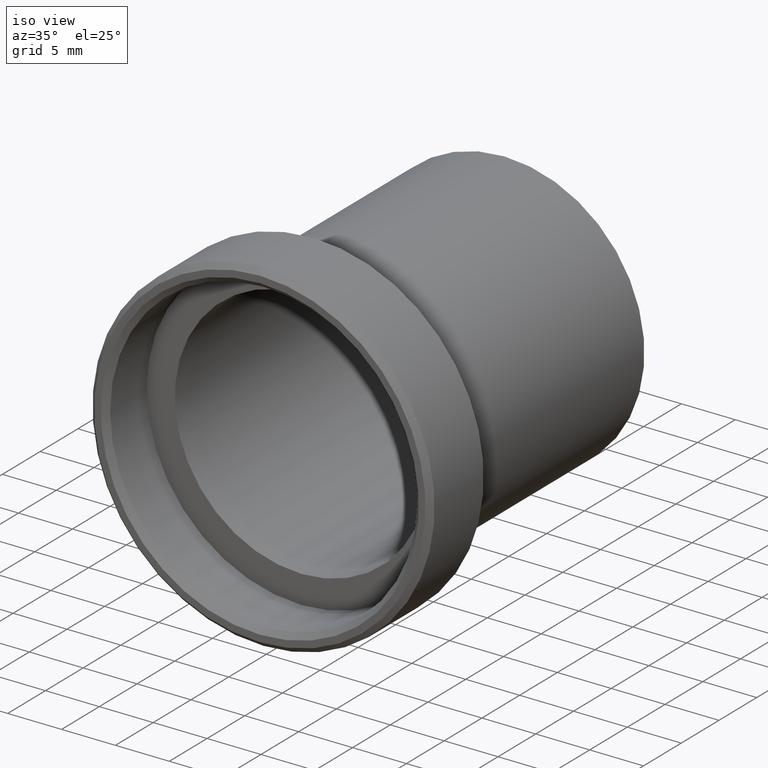
[diagram: clean part render]
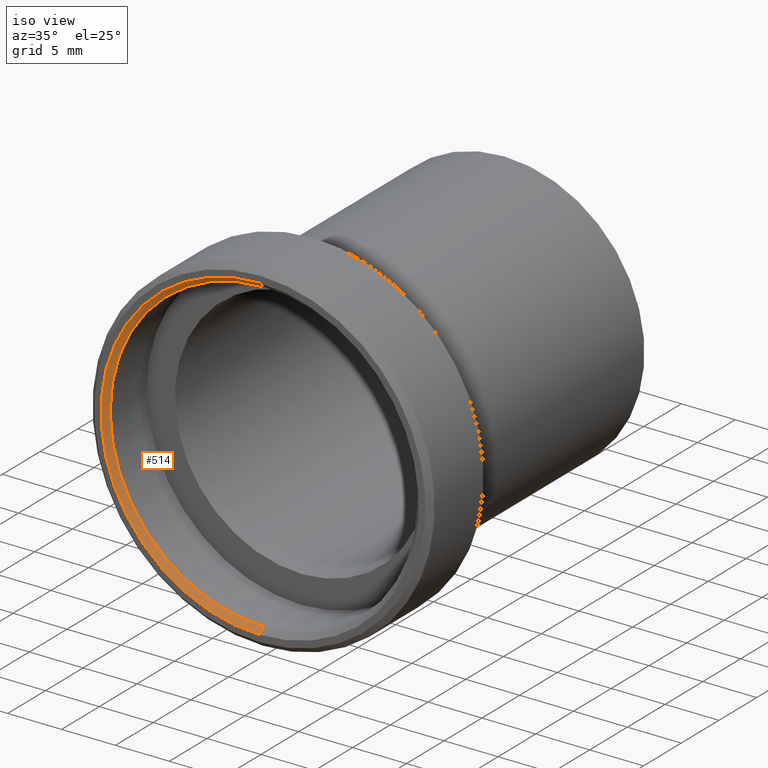
[diagram: same view with one face highlighted and labeled with its STEP entity id]
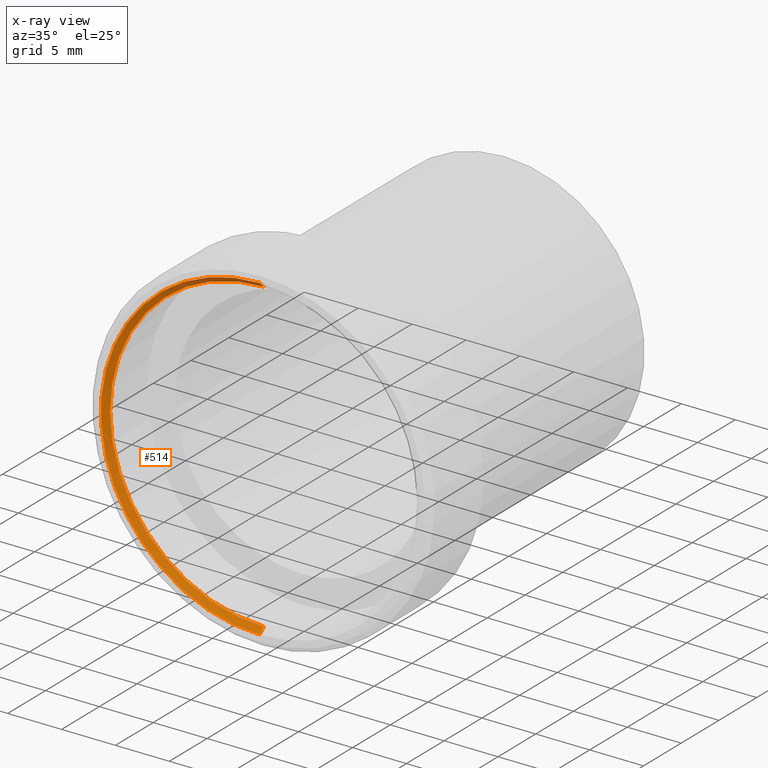
[diagram: x-ray of the same camera — body ghosted, the highlighted face saturated]
A machine part, iso view. The second image highlights one B-rep face of the part: STEP entity #514.
The next image is the same camera in x-ray: the body ghosted, the highlighted face saturated — about 0% of this face is hidden behind the body in this view.
In plain terms, the highlighted conical surface has half-angle 45 deg.
Its self-contained STEP definition (entity closure, byte-faithful):
#7 = CARTESIAN_POINT ( 'NONE',  ( 0.0000000000000000000, -5.857145825433105000, -14.75000000000000900 ) ) ;
#29 = CIRCLE ( 'NONE', #35, 14.75000000000000900 ) ;
#35 = AXIS2_PLACEMENT_3D ( 'NONE', #259, #819, #612 ) ;
#47 = DIRECTION ( 'NONE',  ( -0.0000000000000000000, 1.000000000000000000, -0.0000000000000000000 ) ) ;
#60 = CARTESIAN_POINT ( 'NONE',  ( 0.0000000000000000000, -5.357145825433104100, 0.0000000000000000000 ) ) ;
#108 = CARTESIAN_POINT ( 'NONE',  ( 1.745121688784979000E-015, -5.357145825433104100, 14.25000000000000500 ) ) ;
#112 = DIRECTION ( 'NONE',  ( 0.0000000000000000000, 0.0000000000000000000, 1.000000000000000000 ) ) ;
#143 = EDGE_CURVE ( 'NONE', #188, #525, #442, .T. ) ;
#154 = VERTEX_POINT ( 'NONE', #451 ) ;
#167 = DIRECTION ( 'NONE',  ( 0.0000000000000000000, -0.7071067811865450200, -0.7071067811865500200 ) ) ;
#176 = ORIENTED_EDGE ( 'NONE', *, *, #351, .T. ) ;
#188 = VERTEX_POINT ( 'NONE', #449 ) ;
#259 = CARTESIAN_POINT ( 'NONE',  ( 0.0000000000000000000, -5.857145825433105000, 0.0000000000000000000 ) ) ;
#298 = LINE ( 'NONE', #108, #769 ) ;
#310 = CARTESIAN_POINT ( 'NONE',  ( 0.0000000000000000000, -5.357145825433104100, 0.0000000000000000000 ) ) ;
#336 = AXIS2_PLACEMENT_3D ( 'NONE', #60, #672, #684 ) ;
#351 = EDGE_CURVE ( 'NONE', #525, #154, #298, .T. ) ;
#392 = LINE ( 'NONE', #583, #477 ) ;
#393 = ORIENTED_EDGE ( 'NONE', *, *, #143, .T. ) ;
#404 = ORIENTED_EDGE ( 'NONE', *, *, #814, .F. ) ;
#442 = CIRCLE ( 'NONE', #503, 14.25000000000000500 ) ;
#449 = CARTESIAN_POINT ( 'NONE',  ( 1.745121688784979000E-015, -5.357145825433104100, -14.25000000000000500 ) ) ;
#451 = CARTESIAN_POINT ( 'NONE',  ( 1.806354028742347400E-015, -5.857145825433105000, 14.75000000000000900 ) ) ;
#477 = VECTOR ( 'NONE', #167, 1000.000000000000000 ) ;
#492 = EDGE_CURVE ( 'NONE', #607, #154, #29, .T. ) ;
#503 = AXIS2_PLACEMENT_3D ( 'NONE', #310, #47, #112 ) ;
#514 = ADVANCED_FACE ( 'NONE', ( #730 ), #753, .F. ) ;
#525 = VERTEX_POINT ( 'NONE', #745 ) ;
#538 = ORIENTED_EDGE ( 'NONE', *, *, #492, .F. ) ;
#583 = CARTESIAN_POINT ( 'NONE',  ( 0.0000000000000000000, -5.357145825433104100, -14.25000000000000500 ) ) ;
#607 = VERTEX_POINT ( 'NONE', #7 ) ;
#612 = DIRECTION ( 'NONE',  ( 0.0000000000000000000, 0.0000000000000000000, 1.000000000000000000 ) ) ;
#672 = DIRECTION ( 'NONE',  ( 0.0000000000000000000, -1.000000000000000000, 0.0000000000000000000 ) ) ;
#684 = DIRECTION ( 'NONE',  ( 0.0000000000000000000, 0.0000000000000000000, -1.000000000000000000 ) ) ;
#691 = EDGE_LOOP ( 'NONE', ( #393, #176, #538, #404 ) ) ;
#730 = FACE_OUTER_BOUND ( 'NONE', #691, .T. ) ;
#745 = CARTESIAN_POINT ( 'NONE',  ( 0.0000000000000000000, -5.357145825433104100, 14.25000000000000500 ) ) ;
#753 = CONICAL_SURFACE ( 'NONE', #336, 14.25000000000000500, 0.7853981633974518300 ) ;
#769 = VECTOR ( 'NONE', #879, 1000.000000000000000 ) ;
#814 = EDGE_CURVE ( 'NONE', #188, #607, #392, .T. ) ;
#819 = DIRECTION ( 'NONE',  ( -0.0000000000000000000, 1.000000000000000000, -0.0000000000000000000 ) ) ;
#879 = DIRECTION ( 'NONE',  ( 8.659560562354963700E-017, -0.7071067811865450200, 0.7071067811865500200 ) ) ;